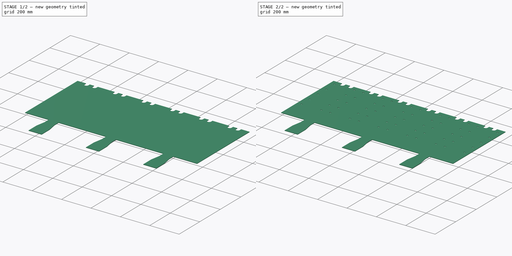
[diagram: build sequence overview — one tinted view per stage of 2, left to right]
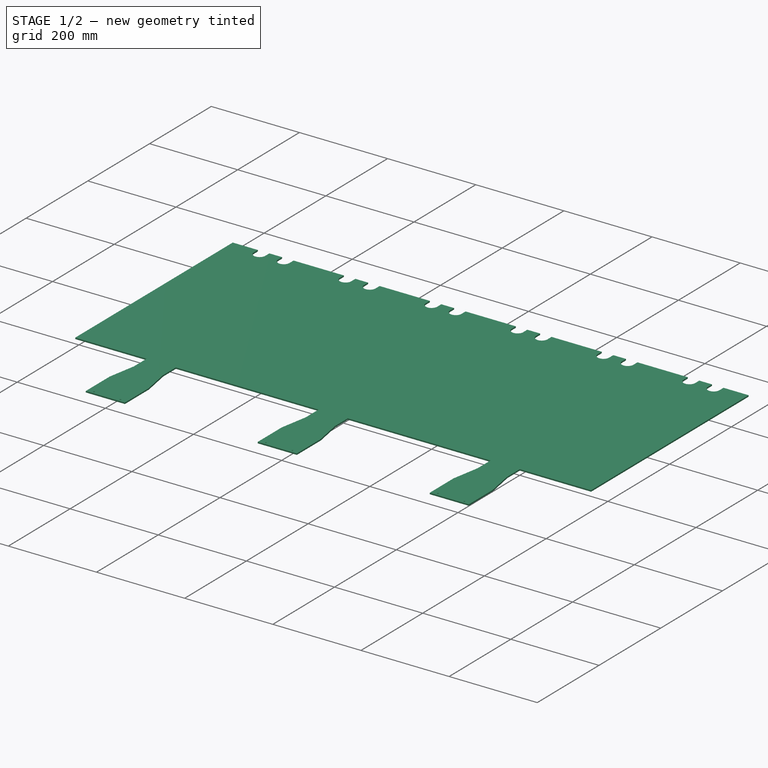
[diagram: stage 1 of 2 — iso view after this stage's code; geometry added in this stage tinted green]
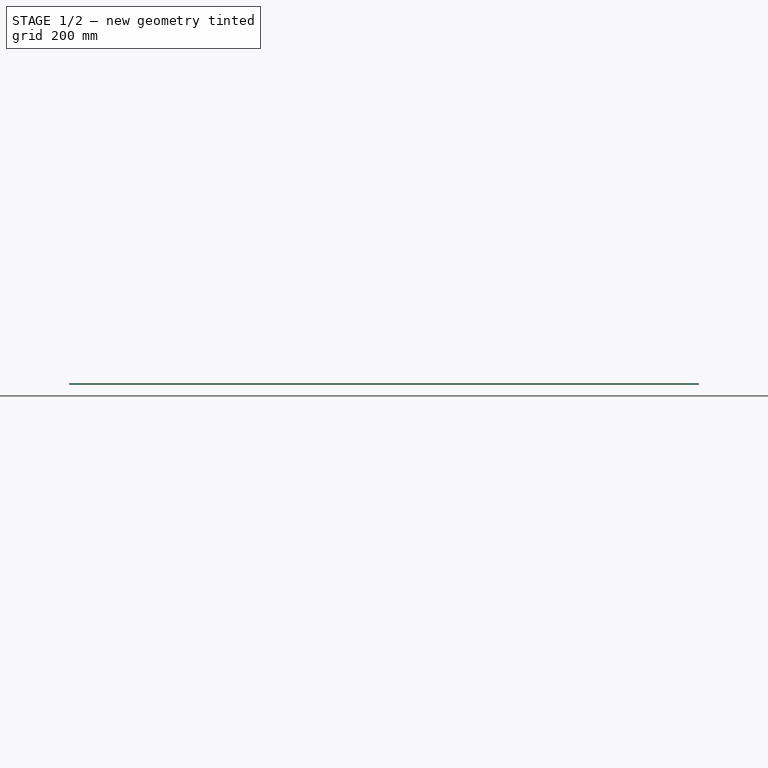
[diagram: stage 1 of 2 — front view after this stage's code; geometry added in this stage tinted green]
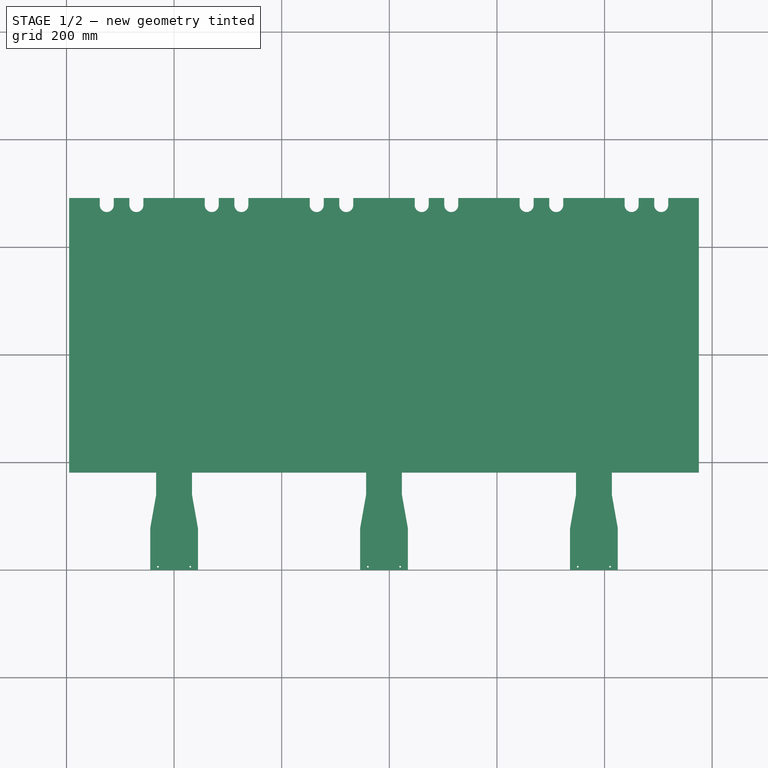
[diagram: stage 1 of 2 — top view after this stage's code; geometry added in this stage tinted green]
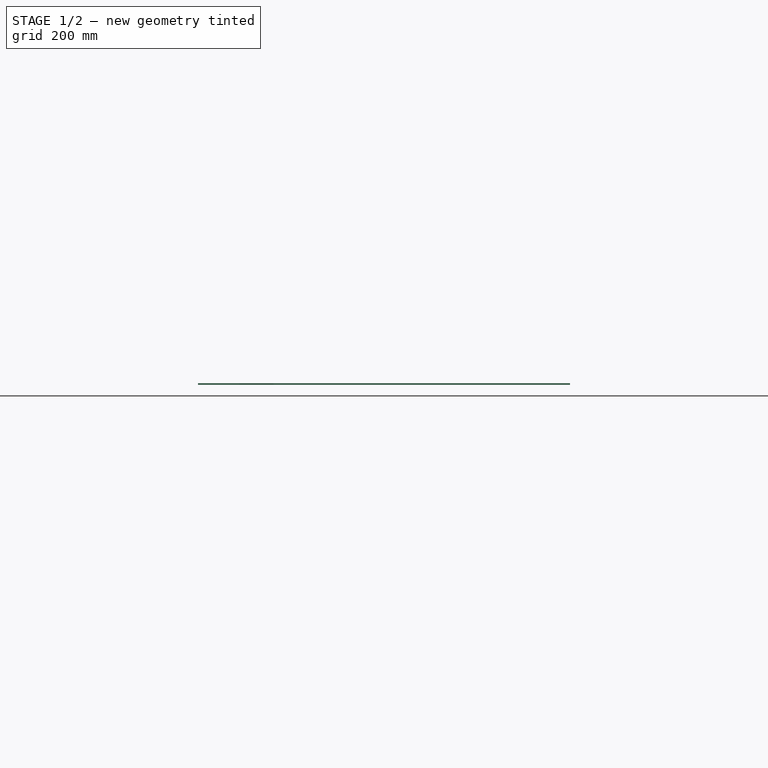
[diagram: stage 1 of 2 — right view after this stage's code; geometry added in this stage tinted green]
FCSTD DOCUMENT  (FreeCAD 0.20R29410 (Git))
Label: testrest
License: All rights reserved
LicenseURL: http://en.wikipedia.org/wiki/All_rights_reserved
objects: PartDesign::LinearPattern×4, Sketcher::SketchObject×2, PartDesign::Mirrored×2, PartDesign::MultiTransform×2, Part::Feature×1, PartDesign::Pad×1, PartDesign::Pocket×1, PartDesign::Body×1
note: 16 computed .brp shape members not serialized (recipe doc carries the construction recipe); baked Part::Feature solids carry a one-line shape summary decoded from their .brp

FEATURE [Part::Feature] layer_1
  shape: bbox 30310 x 17560 x 2e-07 mm, 0 faces, 0 solids (baked)
FEATURE [Sketcher::SketchObject] Sketch
  FullyConstrained = true
  MapMode = 5
  Support = -> [XY_Plane]
  sketch-geometry (17):
    g0: LineSegment StartX=0 StartY=0 StartZ=0 EndX=44.3742 EndY=0 EndZ=0
    g1: LineSegment StartX=44.3742 StartY=0 StartZ=0 EndX=44.3742 EndY=77.5343 EndZ=0
    g2: LineSegment StartX=44.3742 StartY=77.5343 StartZ=0 EndX=33.2573 EndY=140 EndZ=0
    g3: LineSegment StartX=33.2573 StartY=140 StartZ=0 EndX=33.2573 EndY=181.052 EndZ=0
    g4: LineSegment StartX=33.2573 StartY=181.052 StartZ=0 EndX=195.066 EndY=181.052 EndZ=0
    g5: LineSegment StartX=195.066 StartY=181.052 StartZ=0 EndX=195.066 EndY=691.375 EndZ=0
    g6: LineSegment StartX=195.066 StartY=691.375 StartZ=0 EndX=138.069 EndY=691.375 EndZ=0
    g7: LineSegment StartX=57.0514 StartY=691.375 StartZ=0 EndX=0 EndY=691.375 EndZ=0
    g8: LineSegment StartX=0 StartY=691.375 StartZ=0 EndX=0 EndY=0 EndZ=0
    g9: LineSegment StartX=57.0514 StartY=691.375 StartZ=0 EndX=57.0514 EndY=678.259 EndZ=0
    g10: LineSegment StartX=138.069 StartY=691.375 StartZ=0 EndX=138.069 EndY=678.259 EndZ=0
    g11: Circle CenterX=30.0006 CenterY=6 CenterZ=0 NormalX=0 NormalY=0 NormalZ=1 AngleXU=0 Radius=1.6
    g12: LineSegment StartX=83.062 StartY=691.375 StartZ=0 EndX=112.059 EndY=691.375 EndZ=0
    g13: LineSegment StartX=83.062 StartY=691.375 StartZ=0 EndX=83.062 EndY=678.259 EndZ=0
    g14: LineSegment StartX=112.059 StartY=691.375 StartZ=0 EndX=112.059 EndY=678.259 EndZ=0
    g15: ArcOfCircle CenterX=125.064 CenterY=678.259 CenterZ=0 NormalX=0 NormalY=0 NormalZ=1 AngleXU=0 Radius=13.0053 StartAngle=3.14159 EndAngle=6.28319
    g16: ArcOfCircle CenterX=70.0567 CenterY=678.259 CenterZ=0 NormalX=0 NormalY=0 NormalZ=1 AngleXU=0 Radius=13.0053 StartAngle=3.14159 EndAngle=6.28319
  constraints (49):
    c: Coincident(g-1,g0)
    c: PointOnObject(g0,g-1)
    c: Coincident(g0,g1)
    c: Vertical(g1)
    c: Coincident(g1,g2)
    c: Coincident(g2,g3)
    c: Vertical(g3)
    c: Coincident(g3,g4)
    c: Horizontal(g4)
    c: Coincident(g4,g5)
    c: Vertical(g5)
    c: Coincident(g5,g6)
    c: Horizontal(g6)
    c: PointOnObject(g7,g-2)
    c: Horizontal(g7)
    c: Coincident(g7,g8)
    c: Coincident(g8,g0)
    c: Coincident(g7,g9)
    c: Vertical(g9)
    c: Coincident(g6,g10)
    c: Vertical(g10)
    c: Horizontal(g6,g7)
    c: DistanceX(g0,g0) = 44.3742
    c: DistanceY(g1,g1) = 77.5343
    c: DistanceY(g1,g2) = 62.4657
    c: DistanceX(g2,g1) = 11.1169
    c: DistanceY(g3,g3) = 41.0516
    c: DistanceX(g4,g4) = 161.808
    c: DistanceY(g5,g5) = 510.324
    c: DistanceX(g6,g6) = 56.9961
    c: Horizontal(g12)
    c: DistanceX(g12,g12) = 28.9968
    c: DistanceX(g7,g7) = 57.0514
    c: Horizontal(g7,g12)
    c: Coincident(g13,g12)
    c: Vertical(g13)
    c: Coincident(g14,g12)
    c: Vertical(g14)
    c: Horizontal(g15,g16)
    c: Tangent(g15,g10) = 1.5708
    c: Tangent(g15,g14) = -1.5708
    c: Tangent(g16,g13) = 1.5708
    c: Tangent(g16,g9) = -1.5708
    c: Equal(g15,g16)
    c: DistanceY(g16,g7) = 13.1161
    c: Diameter(g11) = 3.2
    c: DistanceY(g0,g11) = 6
    c: DistanceX(g11,g0) = 14.3736
    c: DistanceX(g7,g5) = 195.066  'width'
FEATURE [PartDesign::Pad] Pad
  Direction = (0,0,1)
  Length = 3
  Length2 = 10
  Profile = -> Sketch
  ReferenceAxis = -> Sketch [N_Axis]
  Type = 0
FEATURE [PartDesign::Mirrored] Mirrored
  MirrorPlane = -> Sketch [V_Axis]
FEATURE [PartDesign::LinearPattern] LinearPattern
  Direction = -> Sketch [H_Axis]
  Length = 780.262
  Occurrences = 3
  expr: Length = Sketch.Constraints.width * 2 * 2
FEATURE [PartDesign::MultiTransform] MultiTransform
  BaseFeature = -> Pad
  Originals = -> [Pad]
  Transformations = -> [Mirrored,LinearPattern]
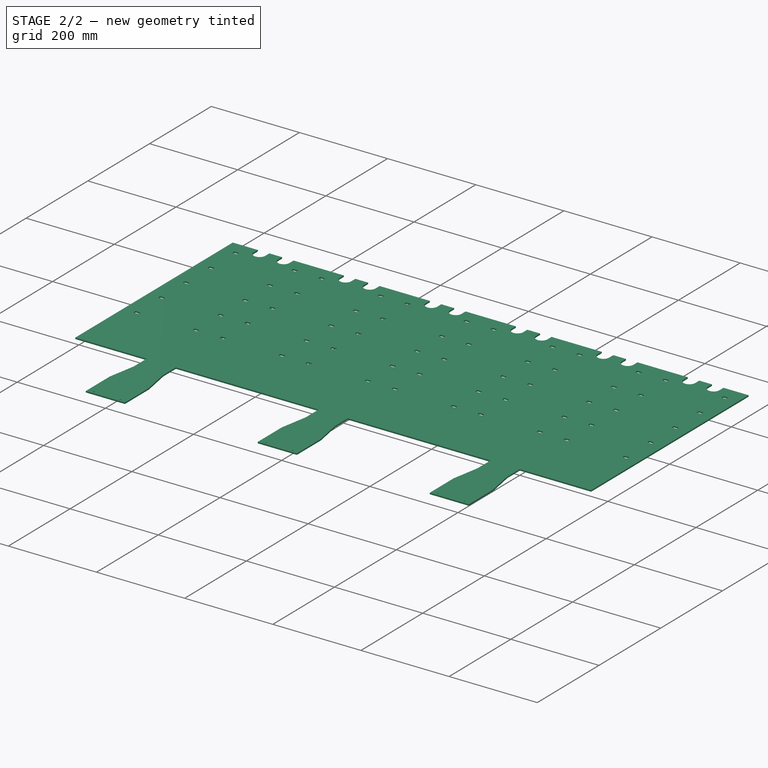
[diagram: stage 2 of 2 — iso view after this stage's code; geometry added in this stage tinted green]
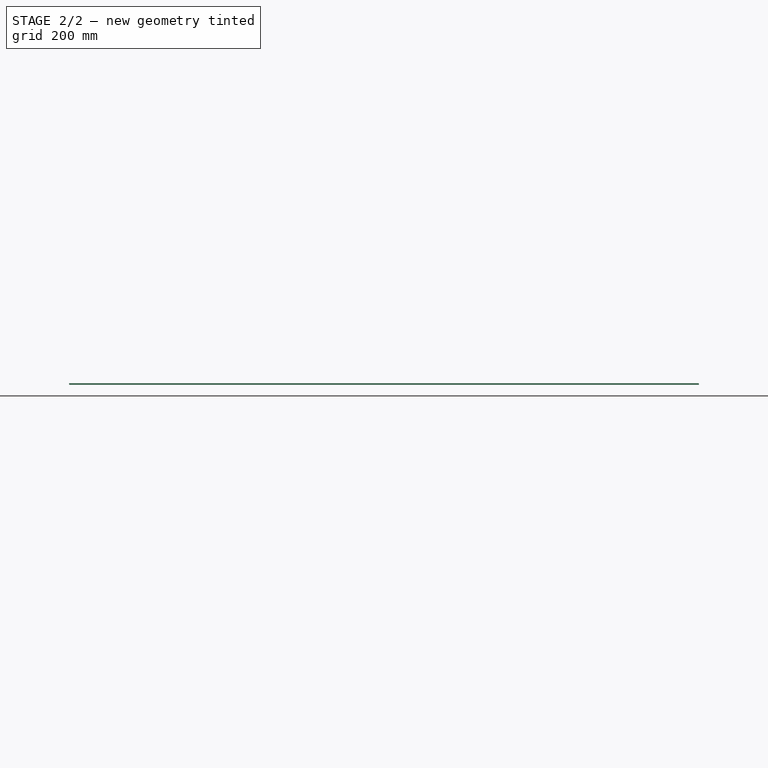
[diagram: stage 2 of 2 — front view after this stage's code; geometry added in this stage tinted green]
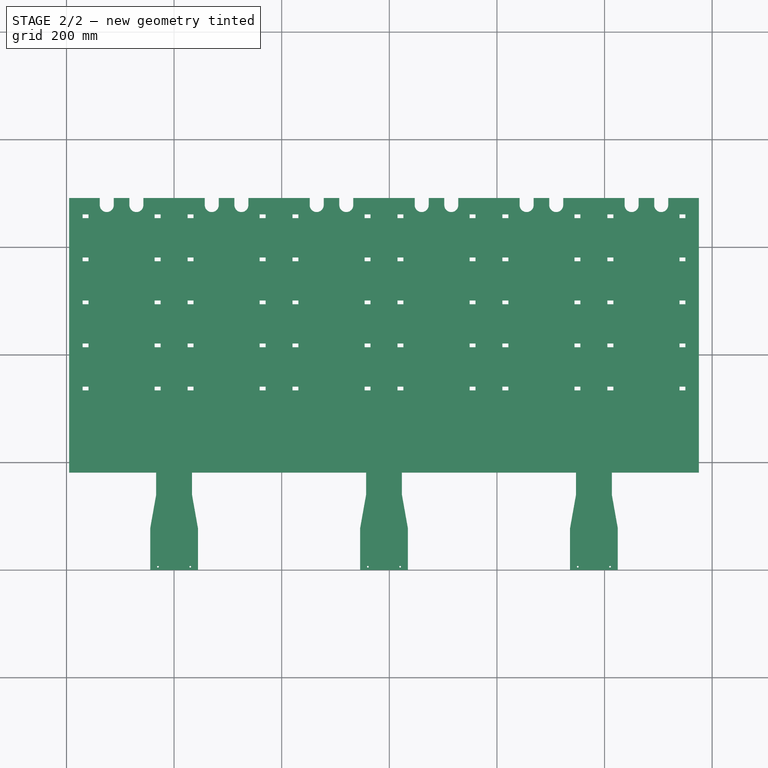
[diagram: stage 2 of 2 — top view after this stage's code; geometry added in this stage tinted green]
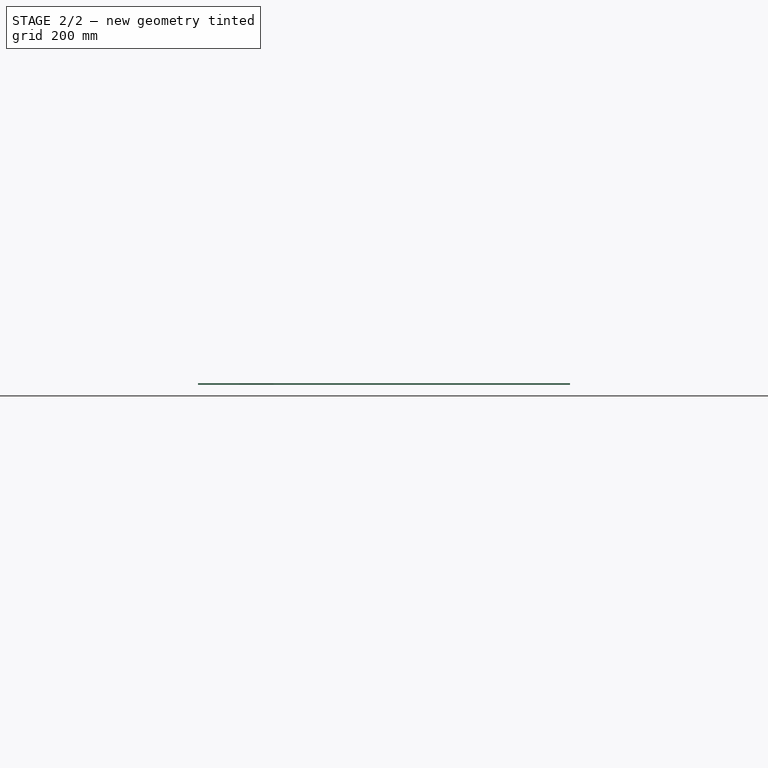
[diagram: stage 2 of 2 — right view after this stage's code; geometry added in this stage tinted green]
FEATURE [Sketcher::SketchObject] Sketch001
  AttachmentOffset = pos=(30.5728,337.411,0) rot=(0,0,1;0rad)
  FullyConstrained = true
  MapMode = 5
  Placement = pos=(30.5728,337.411,0) rot=(0,0,1;0rad)
  Support = -> [XY_Plane]
  expr: .AttachmentOffset.Base.x = 36.07283 - 11 / 2
  expr: .AttachmentOffset.Base.y = 333.91142 + 7 / 2
  sketch-geometry (5):
    g0: LineSegment StartX=5.5 StartY=3.5 StartZ=0 EndX=5.5 EndY=-3.5 EndZ=0
    g1: LineSegment StartX=5.5 StartY=-3.5 StartZ=0 EndX=-5.5 EndY=-3.5 EndZ=0
    g2: LineSegment StartX=-5.5 StartY=-3.5 StartZ=0 EndX=-5.5 EndY=3.5 EndZ=0
    g3: LineSegment StartX=-5.5 StartY=3.5 StartZ=0 EndX=5.5 EndY=3.5 EndZ=0
    g4: GeomPoint X=0 Y=0 Z=0
  constraints (12):
    c: Coincident(g0,g1)
    c: Coincident(g1,g2)
    c: Coincident(g2,g3)
    c: Coincident(g3,g0)
    c: Horizontal(g1)
    c: Horizontal(g3)
    c: Vertical(g0)
    c: Vertical(g2)
    c: Symmetric(g1,g0,g4)
    c: Coincident(g4,g-1)
    c: Distance(g1) = 11
    c: Distance(g0) = 7
FEATURE [PartDesign::Pocket] Pocket
  BaseFeature = -> MultiTransform
  Direction = (0,0,-1)
  Length = 5
  Length2 = 5
  Midplane = true
  Profile = -> Sketch001
  ReferenceAxis = -> Sketch001 [N_Axis]
  Type = 1
FEATURE [PartDesign::LinearPattern] LinearPattern001
  Direction = -> Sketch001 [H_Axis]
  Length = 134
  Occurrences = 2
FEATURE [PartDesign::LinearPattern] LinearPattern002
  Direction = -> Sketch001 [V_Axis]
  Length = 320
  Occurrences = 5
FEATURE [PartDesign::Mirrored] Mirrored001
  MirrorPlane = -> YZ_Plane
FEATURE [PartDesign::LinearPattern] LinearPattern003
  Direction = -> Sketch001 [H_Axis]
  Length = 780.262
  Occurrences = 3
  expr: Length = Sketch.Constraints.width * 2 * 2
FEATURE [PartDesign::MultiTransform] MultiTransform001
  BaseFeature = -> Pocket
  Originals = -> [Pocket]
  Transformations = -> [LinearPattern001,LinearPattern002,Mirrored001,LinearPattern003]
FEATURE [PartDesign::Body] Body
  Group = -> [Sketch,Pad,MultiTransform,Mirrored,LinearPattern,Sketch001,Pocket,MultiTransform001,LinearPattern001,LinearPattern002,Mirrored001,LinearPattern003]
  Origin = -> Origin
  Tip = -> MultiTransform001
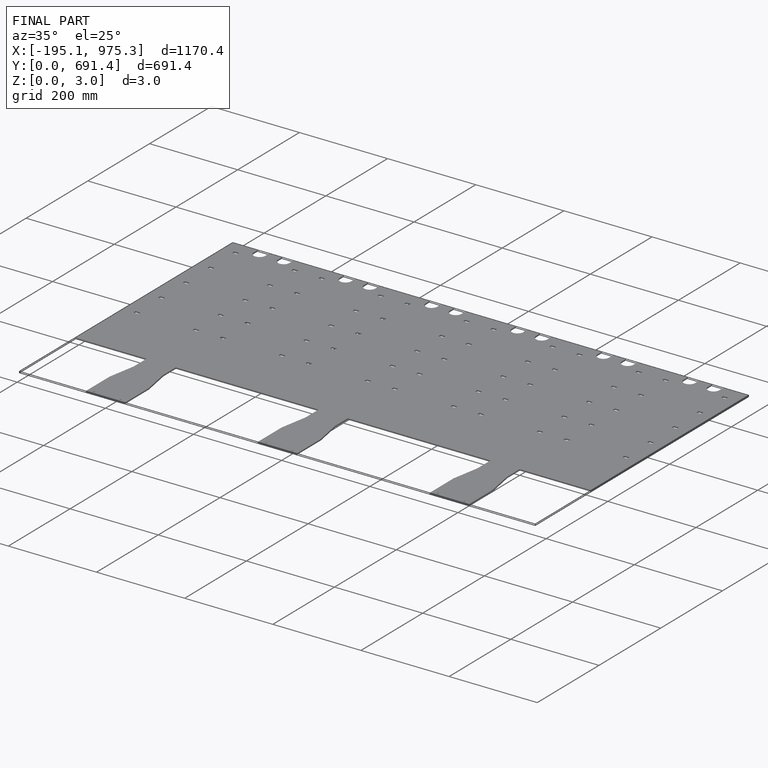
[diagram: finished part — iso view with bounding-box wireframe]
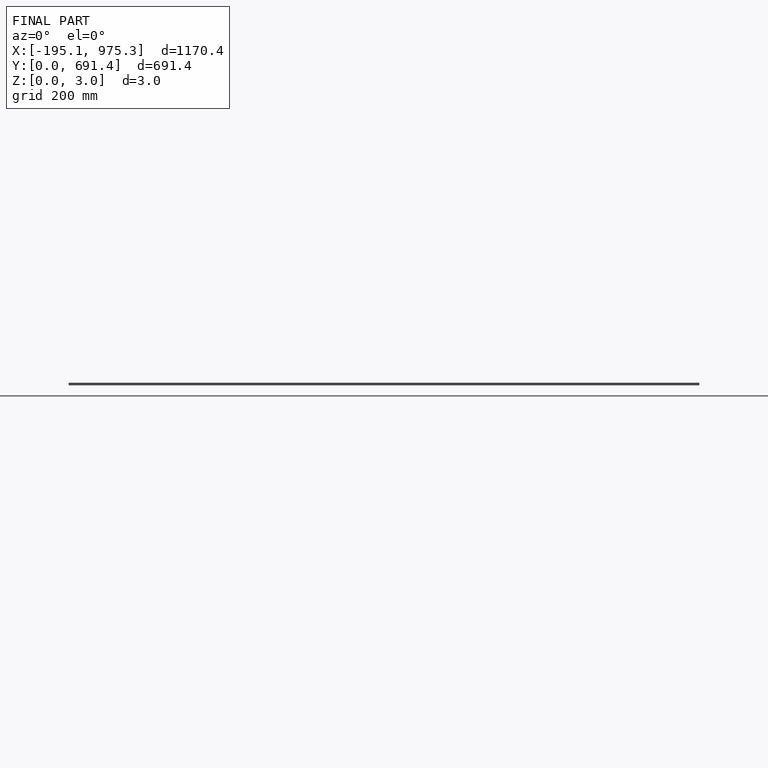
[diagram: finished part — front view with bounding-box wireframe]
